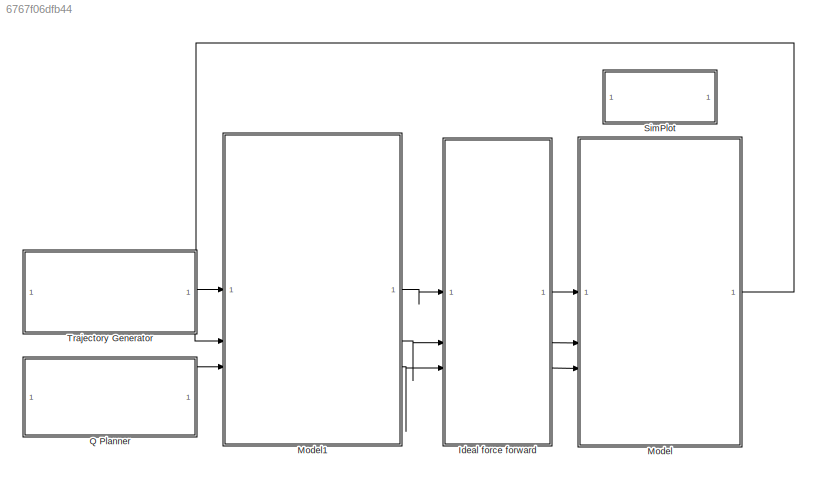
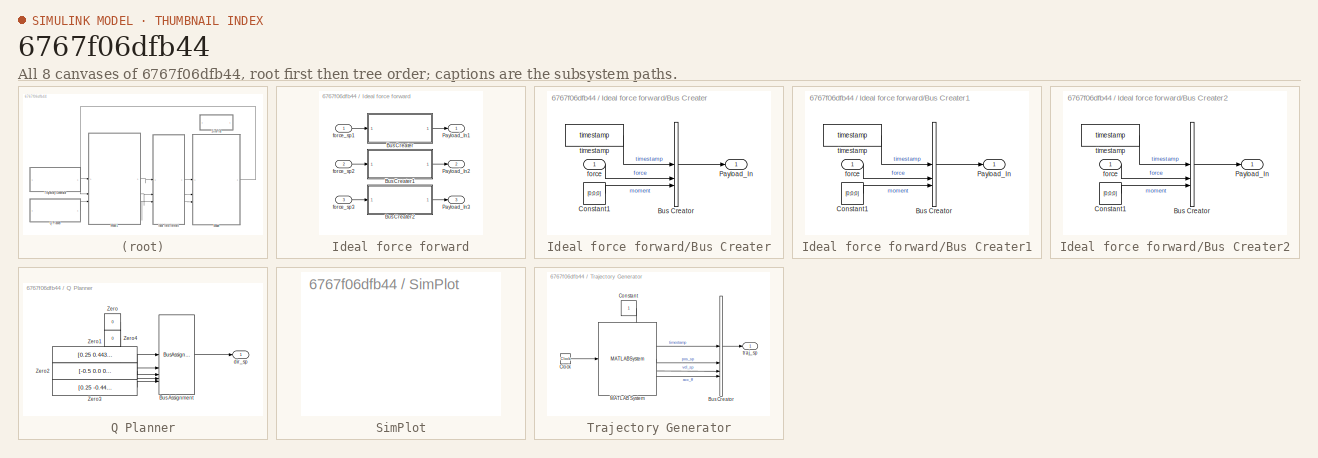
[diagram: thumbnail index - all 8 canvases of the model, root first then tree order]
MODEL slx_6767f06dfb44
KIND model
CONFIG StartFcn = run('control_init.m');
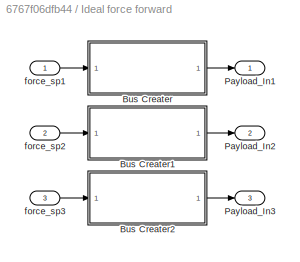
BLOCK [SubSystem] Ideal force forward
BLOCK [SubSystem] Ideal force forward/Bus Creater
BLOCK [BusCreator] Ideal force forward/Bus Creater/Bus Creator
  DisplayOption = bar
  InheritFromInputs = on
  Inputs = timestamp,force,moment
  OutDataTypeStr = Bus: Payload_In_Bus
BLOCK [Constant] Ideal force forward/Bus Creater/Constant1
  OutDataTypeStr = Inherit: Inherit via back propagation
  Value = [0;0;0]
BLOCK [Outport] Ideal force forward/Bus Creater/Payload_In
  OutDataTypeStr = Bus: Payload_In_Bus
BLOCK [Inport] Ideal force forward/Bus Creater/force
BLOCK [Reference] Ideal force forward/Bus Creater/timestamp  REF=mqlib/timestamp  (lib defined in slx_e55b6aeabbfa)
  SourceBlock = mqlib/timestamp
BLOCK [SubSystem] Ideal force forward/Bus Creater1
BLOCK [BusCreator] Ideal force forward/Bus Creater1/Bus Creator
  DisplayOption = bar
  InheritFromInputs = on
  Inputs = timestamp,force,moment
  OutDataTypeStr = Bus: Payload_In_Bus
BLOCK [Constant] Ideal force forward/Bus Creater1/Constant1
  OutDataTypeStr = Inherit: Inherit via back propagation
  Value = [0;0;0]
BLOCK [Outport] Ideal force forward/Bus Creater1/Payload_In
  OutDataTypeStr = Bus: Payload_In_Bus
BLOCK [Inport] Ideal force forward/Bus Creater1/force
BLOCK [Reference] Ideal force forward/Bus Creater1/timestamp  REF=mqlib/timestamp  (lib defined in slx_e55b6aeabbfa)
  SourceBlock = mqlib/timestamp
BLOCK [SubSystem] Ideal force forward/Bus Creater2
BLOCK [BusCreator] Ideal force forward/Bus Creater2/Bus Creator
  DisplayOption = bar
  InheritFromInputs = on
  Inputs = timestamp,force,moment
  OutDataTypeStr = Bus: Payload_In_Bus
BLOCK [Constant] Ideal force forward/Bus Creater2/Constant1
  OutDataTypeStr = Inherit: Inherit via back propagation
  Value = [0;0;0]
BLOCK [Outport] Ideal force forward/Bus Creater2/Payload_In
  OutDataTypeStr = Bus: Payload_In_Bus
BLOCK [Inport] Ideal force forward/Bus Creater2/force
BLOCK [Reference] Ideal force forward/Bus Creater2/timestamp  REF=mqlib/timestamp  (lib defined in slx_e55b6aeabbfa)
  SourceBlock = mqlib/timestamp
BLOCK [Outport] Ideal force forward/Payload_In1
  OutDataTypeStr = Bus: Payload_In_Bus
BLOCK [Outport] Ideal force forward/Payload_In2
  OutDataTypeStr = Bus: Payload_In_Bus
  Port = 2
BLOCK [Outport] Ideal force forward/Payload_In3
  OutDataTypeStr = Bus: Payload_In_Bus
  Port = 3
BLOCK [Inport] Ideal force forward/force_sp1
BLOCK [Inport] Ideal force forward/force_sp2
  Port = 2
BLOCK [Inport] Ideal force forward/force_sp3
  Port = 3
BLOCK [ModelReference] Model
  ModelNameDialog = payload_3dof
  ModelReferenceVersion = 1.116
BLOCK [ModelReference] Model1
  ModelNameDialog = control_3dof
  ModelReferenceVersion = 1.700
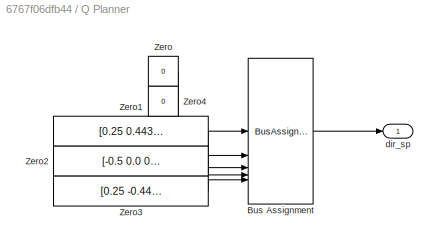
BLOCK [SubSystem] Q Planner
BLOCK [BusAssignment] Q Planner/Bus Assignment
  AssignedSignals = timestamp,q_sp1,q_sp2,q_sp3
BLOCK [Constant] Q Planner/Zero
  OutDataTypeStr = Bus: DirCmd_In_Bus
  Value = 0
BLOCK [Constant] Q Planner/Zero1
  OutDataTypeStr = Inherit: Inherit via back propagation
  Value = [0.25 0.443 0.866]'
BLOCK [Constant] Q Planner/Zero2
  OutDataTypeStr = Inherit: Inherit via back propagation
  Value = [-0.5 0.0 0.866]'
BLOCK [Constant] Q Planner/Zero3
  OutDataTypeStr = Inherit: Inherit via back propagation
  Value = [0.25 -0.443 0.866]'
BLOCK [Constant] Q Planner/Zero4
  OutDataTypeStr = Inherit: Inherit via back propagation
  Value = 0
BLOCK [Outport] Q Planner/dir_sp
BLOCK [SubSystem] SimPlot
  OpenFcn = run('simplot.m');
BLOCK [SubSystem] Trajectory Generator
BLOCK [BusCreator] Trajectory Generator/Bus Creator
  DisplayOption = bar
  InheritFromInputs = on
  Inputs = 4
  OutDataTypeStr = Bus: TrajCmd_In_Bus
BLOCK [Clock] Trajectory Generator/Clock
BLOCK [Constant] Trajectory Generator/Constant
  OutDataTypeStr = Inherit: Inherit via back propagation
BLOCK [MATLABSystem] Trajectory Generator/MATLAB System
  MaskDisplay = disp(['Trajectory' char(10) 'Generator']);\nport_label('input',1,'time');\nport_label('output',1,'pos');\nport_label('output',2,'vel');\nport_label('output',3,'acc');
  MaskType = traj_generator
  SimulateUsing = Code generation
  System = traj_generator
  traj_type = circle
BLOCK [Outport] Trajectory Generator/traj_sp
LINE Ideal force forward/Bus Creater/Bus Creator:1 -> Ideal force forward/Bus Creater/Payload_In:1
LINE Ideal force forward/Bus Creater/Constant1:1 -> Ideal force forward/Bus Creater/Bus Creator:3
LINE Ideal force forward/Bus Creater/force:1 -> Ideal force forward/Bus Creater/Bus Creator:2
LINE Ideal force forward/Bus Creater/timestamp:1 -> Ideal force forward/Bus Creater/Bus Creator:1
LINE Ideal force forward/Bus Creater1/Bus Creator:1 -> Ideal force forward/Bus Creater1/Payload_In:1
LINE Ideal force forward/Bus Creater1/Constant1:1 -> Ideal force forward/Bus Creater1/Bus Creator:3
LINE Ideal force forward/Bus Creater1/force:1 -> Ideal force forward/Bus Creater1/Bus Creator:2
LINE Ideal force forward/Bus Creater1/timestamp:1 -> Ideal force forward/Bus Creater1/Bus Creator:1
LINE Ideal force forward/Bus Creater1:1 -> Ideal force forward/Payload_In2:1
LINE Ideal force forward/Bus Creater2/Bus Creator:1 -> Ideal force forward/Bus Creater2/Payload_In:1
LINE Ideal force forward/Bus Creater2/Constant1:1 -> Ideal force forward/Bus Creater2/Bus Creator:3
LINE Ideal force forward/Bus Creater2/force:1 -> Ideal force forward/Bus Creater2/Bus Creator:2
LINE Ideal force forward/Bus Creater2/timestamp:1 -> Ideal force forward/Bus Creater2/Bus Creator:1
LINE Ideal force forward/Bus Creater2:1 -> Ideal force forward/Payload_In3:1
LINE Ideal force forward/Bus Creater:1 -> Ideal force forward/Payload_In1:1
LINE Ideal force forward/force_sp1:1 -> Ideal force forward/Bus Creater:1
LINE Ideal force forward/force_sp2:1 -> Ideal force forward/Bus Creater1:1
LINE Ideal force forward/force_sp3:1 -> Ideal force forward/Bus Creater2:1
LINE Ideal force forward:1 -> Model:1
LINE Ideal force forward:2 -> Model:2
LINE Ideal force forward:3 -> Model:3
LINE Model1:1 -> Ideal force forward:1
LINE Model1:2 -> Ideal force forward:2
LINE Model1:3 -> Ideal force forward:3
LINE Model:1 -> Model1:1
LINE Q Planner/Bus Assignment:1 -> Q Planner/dir_sp:1
LINE Q Planner/Zero1:1 -> Q Planner/Bus Assignment:3
LINE Q Planner/Zero2:1 -> Q Planner/Bus Assignment:4
LINE Q Planner/Zero3:1 -> Q Planner/Bus Assignment:5
LINE Q Planner/Zero4:1 -> Q Planner/Bus Assignment:2
LINE Q Planner/Zero:1 -> Q Planner/Bus Assignment:1
LINE Q Planner:1 -> Model1:3
LINE Trajectory Generator/Bus Creator:1 -> Trajectory Generator/traj_sp:1
LINE Trajectory Generator/Clock:1 -> Trajectory Generator/MATLAB System:1
LINE Trajectory Generator/Constant:1 -> Trajectory Generator/Bus Creator:1
LINE Trajectory Generator/MATLAB System:1 -> Trajectory Generator/Bus Creator:2
LINE Trajectory Generator/MATLAB System:2 -> Trajectory Generator/Bus Creator:3
LINE Trajectory Generator/MATLAB System:3 -> Trajectory Generator/Bus Creator:4
LINE Trajectory Generator:1 -> Model1:2
